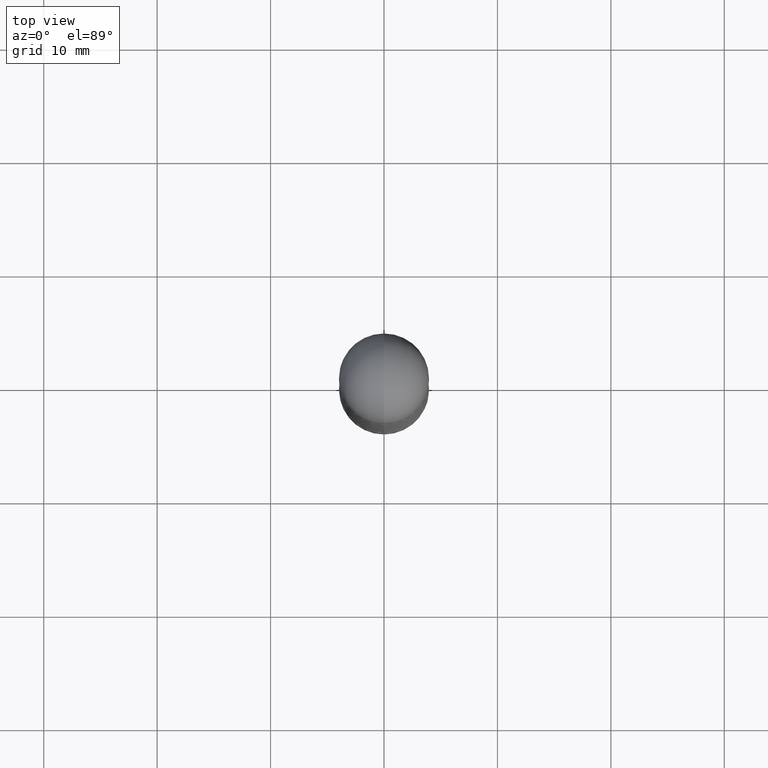
[diagram: clean part render]
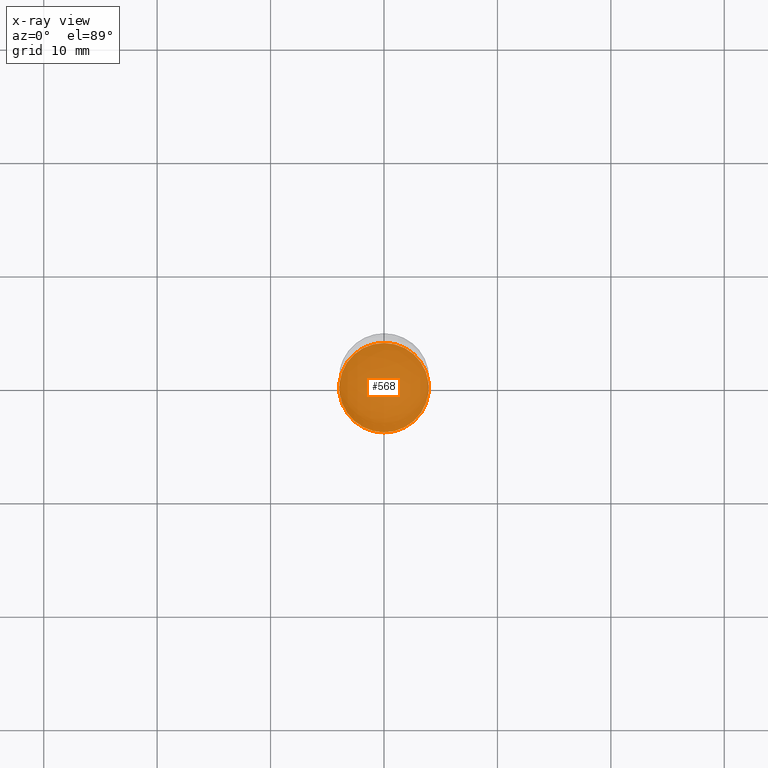
[diagram: x-ray — body ghosted, one internal face saturated and labeled with its STEP entity id]
A machine part, top view, then the same camera in x-ray: the body is ghosted and one INTERNAL B-rep face — a face not visible from any outside direction — is saturated and labeled: STEP entity #568.
In plain terms, the highlighted planar face has unit normal (-0, 0, 1).
Its self-contained STEP definition (entity closure, byte-faithful):
#12 = CARTESIAN_POINT ( 'NONE',  ( -1.084104955710744053E-15, -0.1552500000000069935, -1.999999999999999778 ) ) ;
#50 = VERTEX_POINT ( 'NONE', #141 ) ;
#54 = PLANE ( 'NONE',  #296 ) ;
#126 = FACE_OUTER_BOUND ( 'NONE', #498, .T. ) ;
#134 = DIRECTION ( 'NONE',  ( -6.982962677686265922E-15, -1.000000000000000000, 3.492179817113241133E-15 ) ) ;
#141 = CARTESIAN_POINT ( 'NONE',  ( 1.106670310946405735E-15, 0.1552499999999930047, -2.000000000000000888 ) ) ;
#173 = CIRCLE ( 'NONE', #188, 0.1552499999999999991 ) ;
#187 = CARTESIAN_POINT ( 'NONE',  ( 4.889962122832023554E-29, -6.984359634226483055E-15, -2.000000000000000444 ) ) ;
#188 = AXIS2_PLACEMENT_3D ( 'NONE', #411, #716, #777 ) ;
#237 = DIRECTION ( 'NONE',  ( -2.444981061416011497E-29, 3.492179817113241133E-15, 1.000000000000000000 ) ) ;
#267 = EDGE_CURVE ( 'NONE', #50, #371, #173, .T. ) ;
#296 = AXIS2_PLACEMENT_3D ( 'NONE', #379, #625, #134 ) ;
#371 = VERTEX_POINT ( 'NONE', #12 ) ;
#379 = CARTESIAN_POINT ( 'NONE',  ( 4.889962122832022994E-29, -6.984359634226482266E-15, -2.000000000000000000 ) ) ;
#411 = CARTESIAN_POINT ( 'NONE',  ( 4.889962122832023554E-29, -6.984359634226483055E-15, -2.000000000000000444 ) ) ;
#427 = ORIENTED_EDGE ( 'NONE', *, *, #478, .F. ) ;
#455 = AXIS2_PLACEMENT_3D ( 'NONE', #187, #237, #785 ) ;
#478 = EDGE_CURVE ( 'NONE', #371, #50, #565, .T. ) ;
#498 = EDGE_LOOP ( 'NONE', ( #427, #772 ) ) ;
#565 = CIRCLE ( 'NONE', #455, 0.1552499999999999991 ) ;
#568 = ADVANCED_FACE ( 'NONE', ( #126 ), #54, .F. ) ;
#625 = DIRECTION ( 'NONE',  ( -2.444981061416010936E-29, 3.492179817113241133E-15, 1.000000000000000000 ) ) ;
#716 = DIRECTION ( 'NONE',  ( -2.444981061416011497E-29, 3.492179817113241133E-15, 1.000000000000000000 ) ) ;
#772 = ORIENTED_EDGE ( 'NONE', *, *, #267, .F. ) ;
#777 = DIRECTION ( 'NONE',  ( -6.982962677686265922E-15, -1.000000000000000000, 3.519288880726909138E-15 ) ) ;
#785 = DIRECTION ( 'NONE',  ( -6.982962677686265922E-15, -1.000000000000000000, 3.519288880726909138E-15 ) ) ;